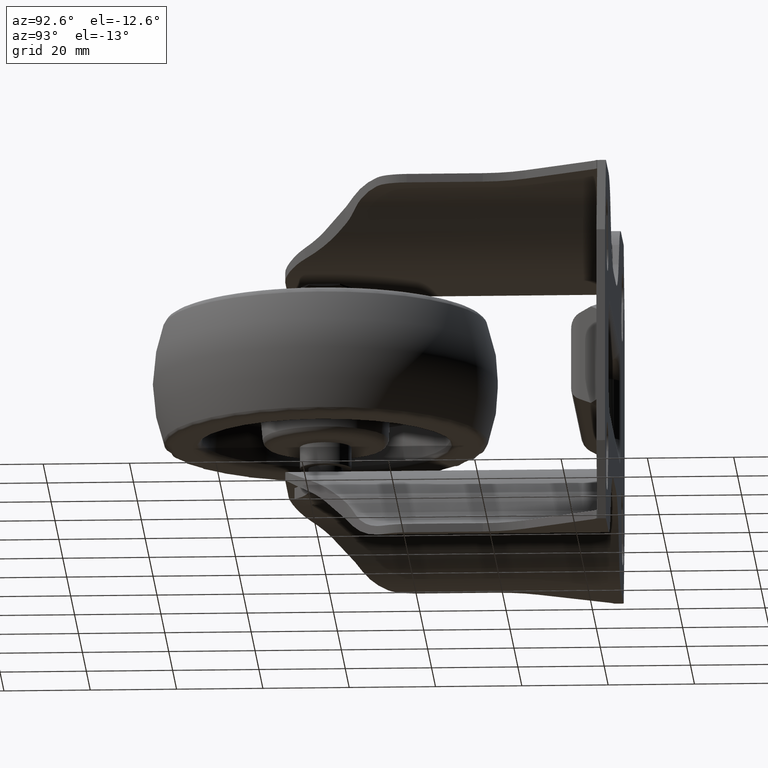
[diagram: clean part render]
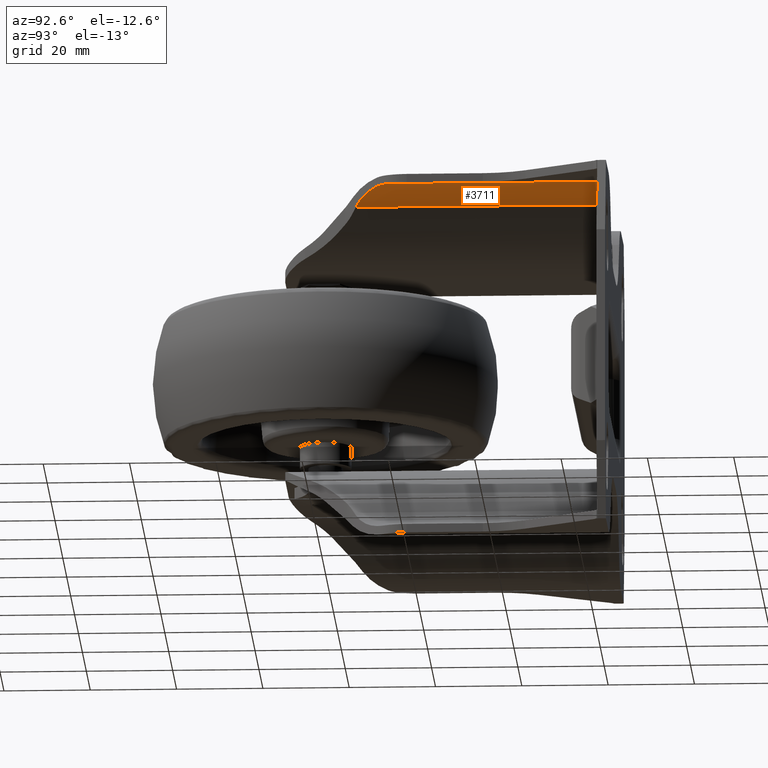
[diagram: same view with one face highlighted and labeled with its STEP entity id]
A machine part, auxiliary view. The second image highlights one B-rep face of the part: STEP entity #3711.
In plain terms, the highlighted cylindrical surface (edge-blend (fillet) strip) has radius 8 mm, axis along (0, 1, 0).
Its self-contained STEP definition (entity closure, byte-faithful):
#73=ELLIPSE('',#4189,11.3137084989847,7.99999999999997);
#105=B_SPLINE_CURVE_WITH_KNOTS('',3,(#6630,#6631,#6632,#6633),
 .UNSPECIFIED.,.F.,.F.,(4,4),(-3.2659122310963,-2.95854992841679),
 .UNSPECIFIED.);
#353=LINE('',#6279,#613);
#448=LINE('',#6627,#708);
#613=VECTOR('',#4805,1000.);
#708=VECTOR('',#5088,1000.);
#811=CYLINDRICAL_SURFACE('',#4188,7.99999999999997);
#973=FACE_OUTER_BOUND('',#1214,.T.);
#1214=EDGE_LOOP('',(#3117,#3118,#3119,#3120,#3121));
#1418=CIRCLE('',#4171,7.99999999999997);
#1733=VERTEX_POINT('',#6277);
#1734=VERTEX_POINT('',#6278);
#1821=VERTEX_POINT('',#6570);
#1841=VERTEX_POINT('',#6625);
#1842=VERTEX_POINT('',#6629);
#2147=EDGE_CURVE('',#1733,#1734,#353,.T.);
#2277=EDGE_CURVE('',#1734,#1821,#1418,.T.);
#2305=EDGE_CURVE('',#1841,#1821,#448,.T.);
#2306=EDGE_CURVE('',#1841,#1842,#105,.T.);
#2307=EDGE_CURVE('',#1733,#1842,#73,.F.);
#3117=ORIENTED_EDGE('',*,*,#2305,.F.);
#3118=ORIENTED_EDGE('',*,*,#2306,.T.);
#3119=ORIENTED_EDGE('',*,*,#2307,.F.);
#3120=ORIENTED_EDGE('',*,*,#2147,.T.);
#3121=ORIENTED_EDGE('',*,*,#2277,.T.);
#3711=ADVANCED_FACE('',(#973),#811,.F.);
#4171=AXIS2_PLACEMENT_3D('',#6572,#5040,#5041);
#4188=AXIS2_PLACEMENT_3D('',#6628,#5089,#5090);
#4189=AXIS2_PLACEMENT_3D('',#6634,#5091,#5092);
#4805=DIRECTION('',(0.,1.,0.));
#5040=DIRECTION('center_axis',(0.,1.,0.));
#5041=DIRECTION('ref_axis',(0.,0.,1.));
#5088=DIRECTION('',(0.,1.,0.));
#5089=DIRECTION('center_axis',(0.,1.,0.));
#5090=DIRECTION('ref_axis',(0.,0.,1.));
#5091=DIRECTION('center_axis',(0.707106781186547,-0.707106781186548,0.));
#5092=DIRECTION('ref_axis',(0.707106781186548,0.707106781186547,0.));
#6277=CARTESIAN_POINT('',(24.487604307034,8.07606157515392,36.5));
#6278=CARTESIAN_POINT('',(24.487604307034,65.,36.5));
#6279=CARTESIAN_POINT('',(24.487604307034,-40.,36.5));
#6570=CARTESIAN_POINT('',(31.4158075373095,65.,40.5));
#6572=CARTESIAN_POINT('Origin',(31.4158075373095,65.,32.5));
#6625=CARTESIAN_POINT('',(31.4158075373095,15.7019754474585,40.5));
#6627=CARTESIAN_POINT('',(31.4158075373095,-40.,40.5));
#6628=CARTESIAN_POINT('Origin',(31.4158075373095,-40.,32.5));
#6629=CARTESIAN_POINT('',(29.5710678118655,13.1595250799854,40.2844033390729));
#6630=CARTESIAN_POINT('Ctrl Pts',(31.4158075373095,15.7019754474585,40.5));
#6631=CARTESIAN_POINT('Ctrl Pts',(30.9319485174533,14.7493681784185,40.5));
#6632=CARTESIAN_POINT('Ctrl Pts',(30.2933729759943,13.8818302441142,40.4555744580555));
#6633=CARTESIAN_POINT('Ctrl Pts',(29.5710678118655,13.1595250799854,40.2844033390728));
#6634=CARTESIAN_POINT('Origin',(31.4158075373095,15.0042648054294,32.5));